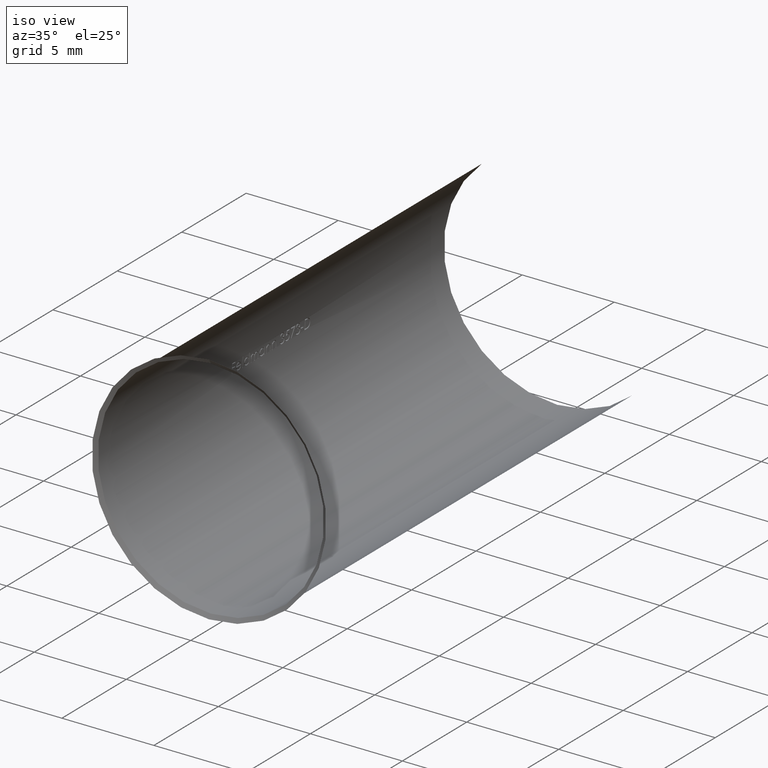
[diagram: clean part render]
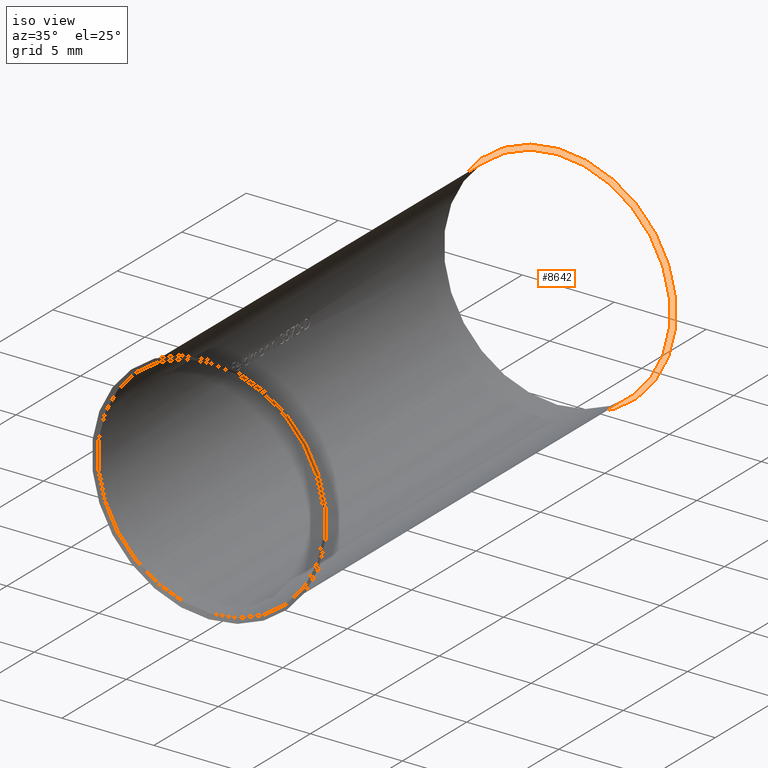
[diagram: same view with one face highlighted and labeled with its STEP entity id]
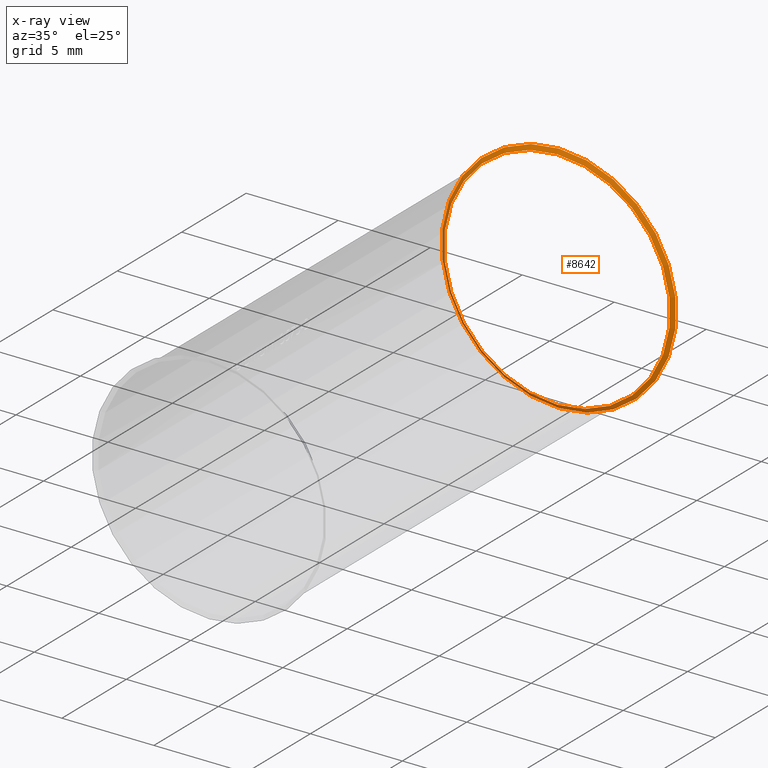
[diagram: x-ray of the same camera — body ghosted, the highlighted face saturated]
A machine part, iso view. The second image highlights one B-rep face of the part: STEP entity #8642.
The next image is the same camera in x-ray: the body ghosted, the highlighted face saturated — about 0% of this face is hidden behind the body in this view.
In plain terms, the highlighted conical surface has half-angle 57.102 deg.
Its self-contained STEP definition (entity closure, byte-faithful):
#612 = DIRECTION ( 'NONE',  ( 0.0000000000000000000, 1.000000000000000000, 0.0000000000000000000 ) ) ;
#647 = CARTESIAN_POINT ( 'NONE',  ( 1.836970198721029600E-015, 13.43128283458827400, 0.0000000000000000000 ) ) ;
#716 = AXIS2_PLACEMENT_3D ( 'NONE', #647, #612, #6592 ) ;
#1220 = ORIENTED_EDGE ( 'NONE', *, *, #9598, .F. ) ;
#1409 = DIRECTION ( 'NONE',  ( 0.0000000000000000000, 0.0000000000000000000, -1.000000000000000000 ) ) ;
#1464 = VERTEX_POINT ( 'NONE', #6401 ) ;
#1704 = VERTEX_POINT ( 'NONE', #9358 ) ;
#1768 = DIRECTION ( 'NONE',  ( 0.0000000000000000000, 0.0000000000000000000, -1.000000000000000000 ) ) ;
#2523 = DIRECTION ( 'NONE',  ( -0.0000000000000000000, -1.000000000000000000, -0.0000000000000000000 ) ) ;
#2887 = CONICAL_SURFACE ( 'NONE', #716, 6.150000000000001200, 0.9966251944908417500 ) ;
#2951 = ORIENTED_EDGE ( 'NONE', *, *, #3615, .F. ) ;
#3615 = EDGE_CURVE ( 'NONE', #1464, #1464, #9649, .T. ) ;
#4712 = AXIS2_PLACEMENT_3D ( 'NONE', #8449, #2523, #1768 ) ;
#6210 = EDGE_LOOP ( 'NONE', ( #2951 ) ) ;
#6383 = AXIS2_PLACEMENT_3D ( 'NONE', #9627, #7388, #1409 ) ;
#6401 = CARTESIAN_POINT ( 'NONE',  ( 1.836970198721029600E-015, 13.43128283458827400, -6.150000000000001200 ) ) ;
#6514 = FACE_OUTER_BOUND ( 'NONE', #8953, .T. ) ;
#6592 = DIRECTION ( 'NONE',  ( 0.0000000000000000000, 0.0000000000000000000, 1.000000000000000000 ) ) ;
#7388 = DIRECTION ( 'NONE',  ( 0.0000000000000000000, 1.000000000000000000, 0.0000000000000000000 ) ) ;
#8276 = FACE_BOUND ( 'NONE', #6210, .T. ) ;
#8449 = CARTESIAN_POINT ( 'NONE',  ( 0.0000000000000000000, 13.57744943611264400, 0.0000000000000000000 ) ) ;
#8642 = ADVANCED_FACE ( 'NONE', ( #6514, #8276 ), #2887, .F. ) ;
#8953 = EDGE_LOOP ( 'NONE', ( #1220 ) ) ;
#9358 = CARTESIAN_POINT ( 'NONE',  ( 0.0000000000000000000, 13.57744943611264400, -6.375960069652606400 ) ) ;
#9433 = CIRCLE ( 'NONE', #4712, 6.375960069652606400 ) ;
#9598 = EDGE_CURVE ( 'NONE', #1704, #1704, #9433, .T. ) ;
#9627 = CARTESIAN_POINT ( 'NONE',  ( 1.836970198721029600E-015, 13.43128283458827400, 0.0000000000000000000 ) ) ;
#9649 = CIRCLE ( 'NONE', #6383, 6.150000000000001200 ) ;